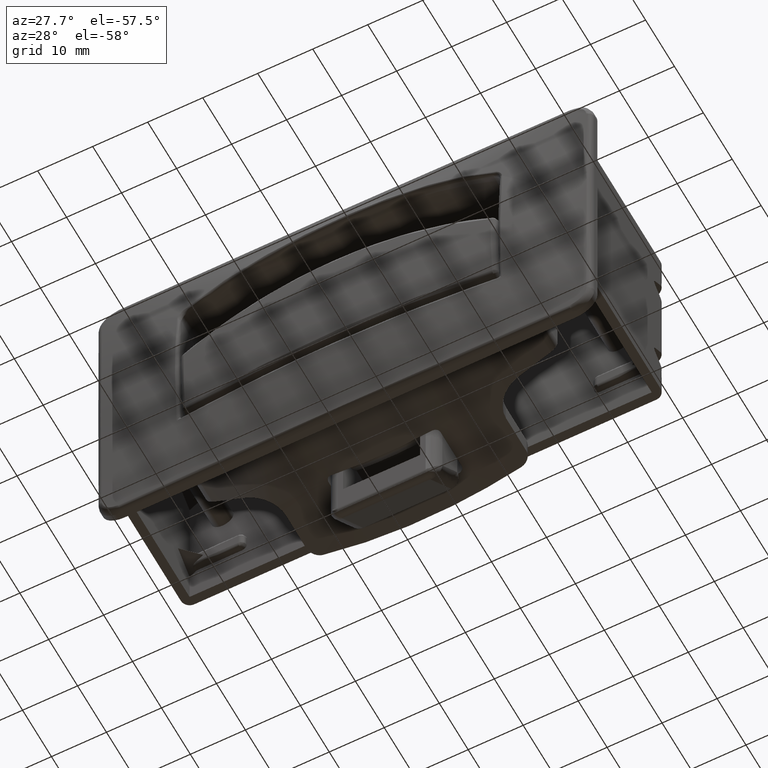
[diagram: clean part render]
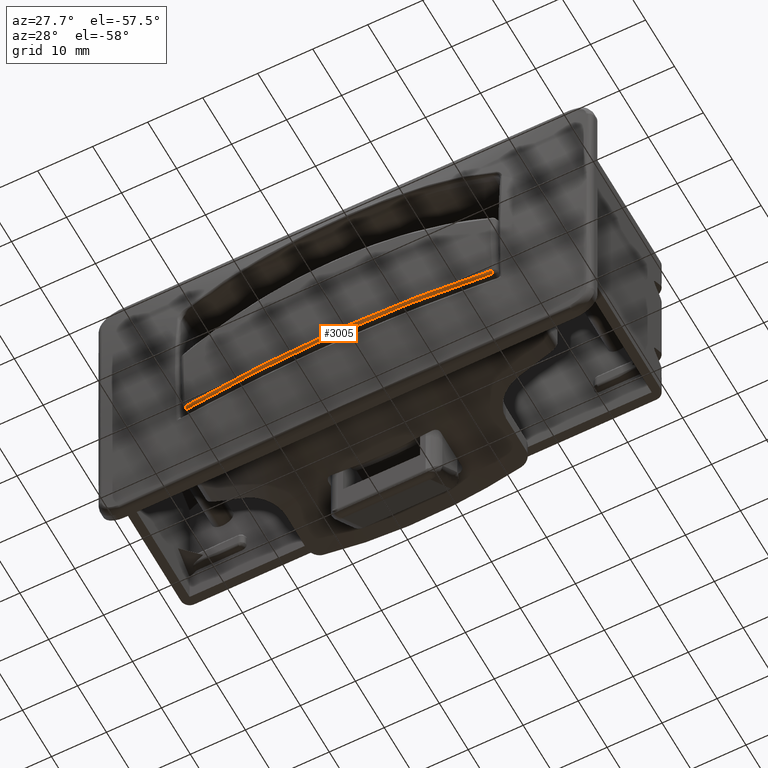
[diagram: same view with one face highlighted and labeled with its STEP entity id]
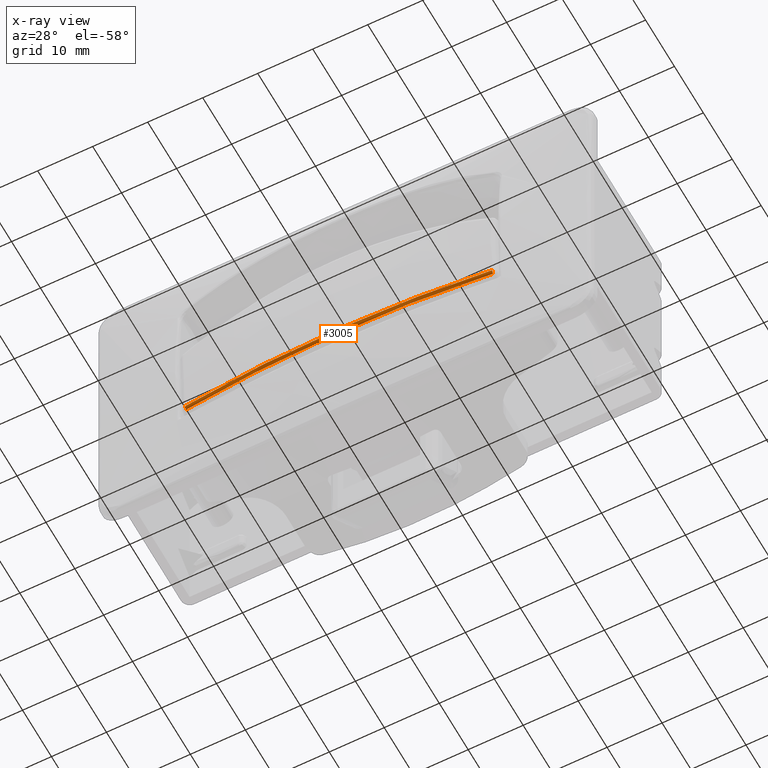
[diagram: x-ray of the same camera — body ghosted, the highlighted face saturated]
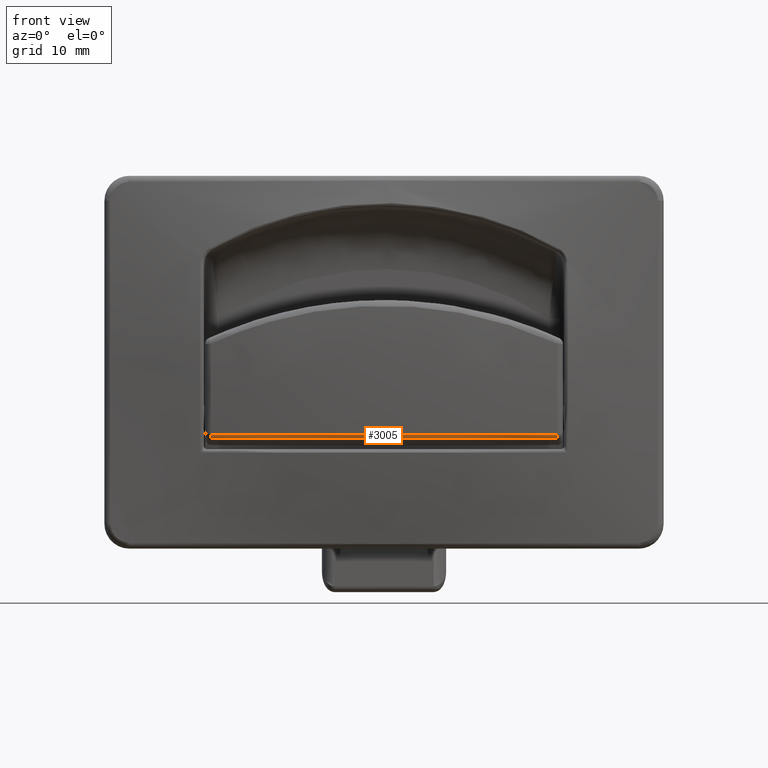
[diagram: same view with one face highlighted and labeled with its STEP entity id]
A machine part, auxiliary view. The second image highlights one B-rep face of the part: STEP entity #3005.
The next image is the same camera in x-ray: the body ghosted, the highlighted face saturated — about 0% of this face is hidden behind the body in this view.
A second angle (front view) of the same face is appended — the face is thin or edge-on in the first view.
In plain terms, the highlighted face is a freeform B-spline surface patch.
Its self-contained STEP definition (entity closure, byte-faithful):
#1892=CARTESIAN_POINT('',(27.873371562374501,-3.555291805598370,17.785825974388199));
#1893=VERTEX_POINT('',#1892);
#1894=CARTESIAN_POINT('',(-27.873371562374551,-3.555291805595495,17.785825974388199));
#1895=VERTEX_POINT('',#1894);
#1896=CARTESIAN_POINT('',(27.873371562374501,-3.555291805598370,17.785825974388199));
#1897=CARTESIAN_POINT('',(-3.122502E-013,-6.630026430533204,17.785825974388146));
#1898=CARTESIAN_POINT('',(-27.873371562374501,-3.555291805595356,17.785825974388150));
#1906=(BOUNDED_CURVE()B_SPLINE_CURVE(2,(#1896,#1897,#1898),.UNSPECIFIED.,.F.,.U.)CURVE()GEOMETRIC_REPRESENTATION_ITEM()QUASI_UNIFORM_CURVE()RATIONAL_B_SPLINE_CURVE((1.0,0.993970730708104,1.0))REPRESENTATION_ITEM(''));
#1907=EDGE_CURVE('',#1893,#1895,#1906,.T.);
#2313=CARTESIAN_POINT('',(27.909084308102852,-3.879038324444905,18.427869274842749));
#2314=VERTEX_POINT('',#2313);
#2358=CARTESIAN_POINT('',(-27.909084308102951,-3.879038324441965,18.427869274842749));
#2359=VERTEX_POINT('',#2358);
#2367=CARTESIAN_POINT('',(-27.909084308102951,-3.879038324441965,18.427869274842749));
#2368=CARTESIAN_POINT('',(-2.428613E-013,-6.957712451839876,18.427869274842649));
#2369=CARTESIAN_POINT('',(27.909084308102830,-3.879038324444722,18.427869274842649));
#2377=(BOUNDED_CURVE()B_SPLINE_CURVE(2,(#2367,#2368,#2369),.UNSPECIFIED.,.F.,.U.)CURVE()GEOMETRIC_REPRESENTATION_ITEM()QUASI_UNIFORM_CURVE()RATIONAL_B_SPLINE_CURVE((1.0,0.993970730708104,1.0))REPRESENTATION_ITEM(''));
#2378=EDGE_CURVE('',#2359,#2314,#2377,.T.);
#2880=CARTESIAN_POINT('',(-27.873371562374551,-3.555291805595495,17.785825974388199));
#2881=CARTESIAN_POINT('',(-27.884639515431871,-3.657439106296730,17.878116368030469));
#2882=CARTESIAN_POINT('',(-27.900816069246581,-3.804084313146642,18.080851499735719));
#2883=CARTESIAN_POINT('',(-27.907901329354111,-3.868314274973402,18.321007167358239));
#2884=CARTESIAN_POINT('',(-27.909084308102951,-3.879038324441965,18.427869274842749));
#2885=B_SPLINE_CURVE_WITH_KNOTS('',3,(#2880,#2881,#2882,#2883,#2884),.UNSPECIFIED.,.F.,.U.,(4,1,4),(0.000000061707033,0.414298653511649,0.736531372451221),.UNSPECIFIED.);
#2886=EDGE_CURVE('',#1895,#2359,#2885,.T.);
#2975=CARTESIAN_POINT('',(30.678157015135813,-3.561226231069729,18.463567672860776));
#2976=CARTESIAN_POINT('',(0.000001005392896,-7.285803154151051,18.463567672860769));
#2977=CARTESIAN_POINT('',(-30.678155033557950,-3.561226471646183,18.463567672860776));
#2978=CARTESIAN_POINT('',(30.674788224068411,-3.533478570042816,18.036882978613672));
#2979=CARTESIAN_POINT('',(0.000001005282497,-7.257646494582861,18.036882978613669));
#2980=CARTESIAN_POINT('',(-30.674786242708130,-3.533478810592851,18.036882978613665));
#2981=CARTESIAN_POINT('',(30.635280185798180,-3.208063419081116,17.762319317166856));
#2982=CARTESIAN_POINT('',(0.000001003987745,-6.927434747543208,17.762319317166853));
#2983=CARTESIAN_POINT('',(-30.635278206989792,-3.208063659321331,17.762319317166853));
#2991=(BOUNDED_SURFACE()B_SPLINE_SURFACE(2,2,((#2975,#2978,#2981),(#2976,#2979,#2982),(#2977,#2980,#2983)),.UNSPECIFIED.,.F.,.F.,.U.)B_SPLINE_SURFACE_WITH_KNOTS((3,3),(3,3),(75.862005242538459,137.439546576309200),(0.259246182154119,1.078565317679942),.UNSPECIFIED.)GEOMETRIC_REPRESENTATION_ITEM()RATIONAL_B_SPLINE_SURFACE(((0.900837762541536,0.827994329538648,0.900190762344800),(0.894271125710257,0.821958683291871,0.893628841807063),(0.900837762114272,0.827994329145934,0.900190761917843)))REPRESENTATION_ITEM('')SURFACE());
#2992=CARTESIAN_POINT('',(27.873371562374501,-3.555291805598370,17.785825974388199));
#2993=CARTESIAN_POINT('',(27.882127057924890,-3.634662941795950,17.857651280103120));
#2994=CARTESIAN_POINT('',(27.899191851049739,-3.789360298617923,18.051632604452148));
#2995=CARTESIAN_POINT('',(27.907573609607780,-3.865343399317941,18.290434825097002));
#2996=CARTESIAN_POINT('',(27.909084308102852,-3.879038324444905,18.427869274842749));
#2997=B_SPLINE_CURVE_WITH_KNOTS('',3,(#2992,#2993,#2994,#2995,#2996),.UNSPECIFIED.,.F.,.U.,(4,1,4),(0.000000061707135,0.322232780646703,0.736531372451246),.UNSPECIFIED.);
#2998=EDGE_CURVE('',#1893,#2314,#2997,.T.);
#2999=ORIENTED_EDGE('',*,*,#2998,.T.);
#3000=ORIENTED_EDGE('',*,*,#2378,.F.);
#3001=ORIENTED_EDGE('',*,*,#2886,.F.);
#3002=ORIENTED_EDGE('',*,*,#1907,.F.);
#3003=EDGE_LOOP('',(#2999,#3000,#3001,#3002));
#3004=FACE_OUTER_BOUND('',#3003,.T.);
#3005=ADVANCED_FACE('',(#3004),#2991,.T.);